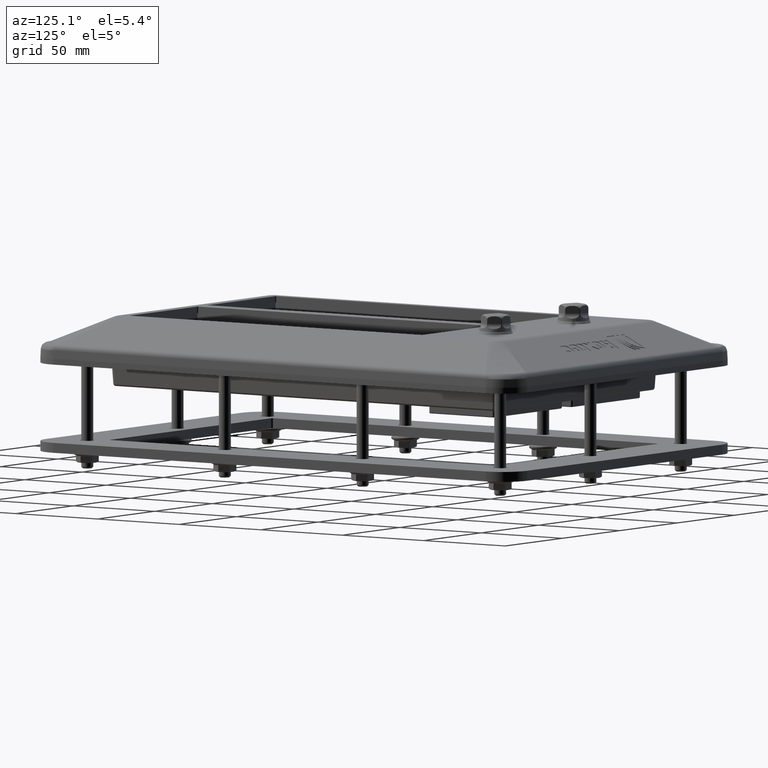
[diagram: clean part render]
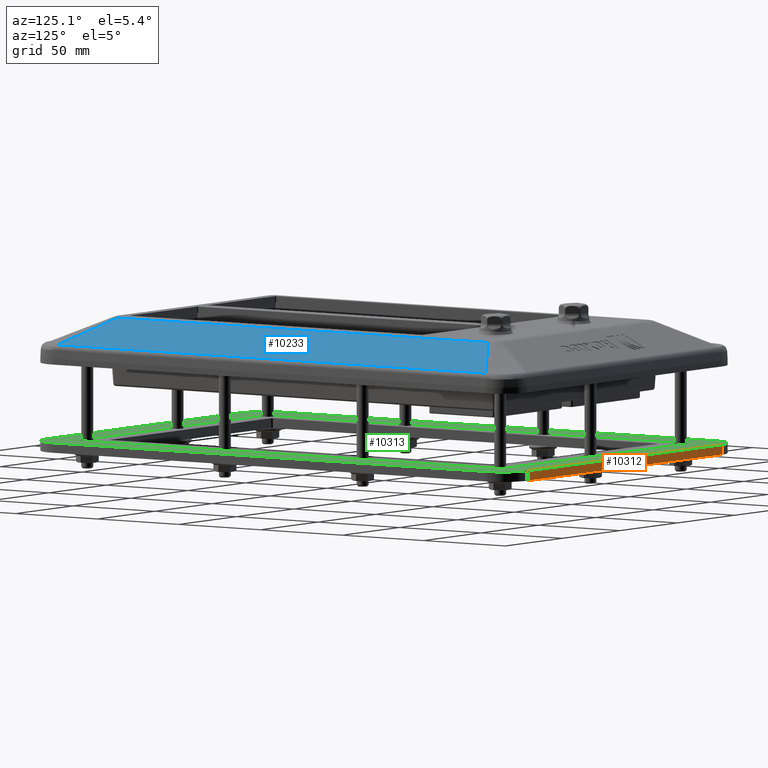
[diagram: same view with three faces highlighted in distinct colors, each labeled with its STEP entity id]
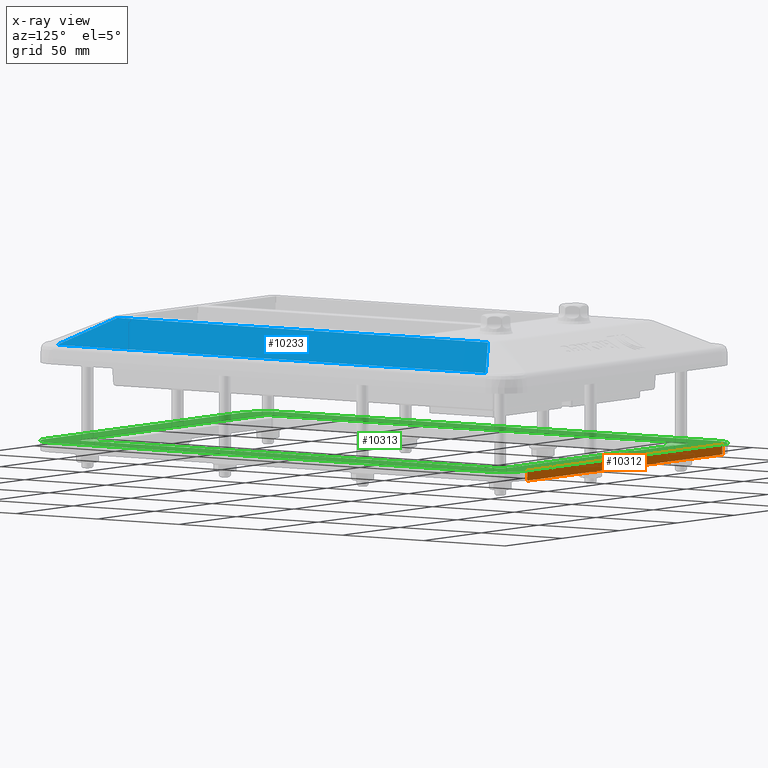
[diagram: x-ray of the same camera — body ghosted, the three highlighted faces saturated]
A machine part, auxiliary view with three faces highlighted in distinct colors.
The next image is the same camera in x-ray (body ghosted, the three faces saturated) — at least one of them is partly hidden behind the body in this view.
Their STEP definitions:

[orange] entity #10312 — the highlighted planar face has unit normal (0, 1, 0).
#930=PLANE('',#11255);
#1493=FACE_OUTER_BOUND('',#2146,.T.);
#2146=EDGE_LOOP('',(#8987,#8988,#8989,#8990));
#2197=LINE('',#14041,#2837);
#2775=LINE('',#19937,#3415);
#2787=LINE('',#19960,#3427);
#2788=LINE('',#19961,#3428);
#2837=VECTOR('',#11459,10.);
#3415=VECTOR('',#13677,10.);
#3427=VECTOR('',#13709,10.);
#3428=VECTOR('',#13710,10.);
#3924=VERTEX_POINT('',#14038);
#3925=VERTEX_POINT('',#14040);
#4762=VERTEX_POINT('',#19935);
#4763=VERTEX_POINT('',#19959);
#4867=EDGE_CURVE('',#3924,#3925,#2197,.T.);
#6169=EDGE_CURVE('',#4762,#3924,#2775,.T.);
#6181=EDGE_CURVE('',#4762,#4763,#2787,.T.);
#6182=EDGE_CURVE('',#3925,#4763,#2788,.T.);
#8987=ORIENTED_EDGE('',*,*,#6181,.T.);
#8988=ORIENTED_EDGE('',*,*,#6182,.F.);
#8989=ORIENTED_EDGE('',*,*,#4867,.F.);
#8990=ORIENTED_EDGE('',*,*,#6169,.F.);
#10312=ADVANCED_FACE('',(#1493),#930,.T.);
#11255=AXIS2_PLACEMENT_3D('',#19958,#13707,#13708);
#11459=DIRECTION('',(1.,0.,0.));
#13677=DIRECTION('',(0.,0.,-1.));
#13707=DIRECTION('center_axis',(0.,1.,2.51920354033766E-139));
#13708=DIRECTION('ref_axis',(1.,0.,0.));
#13709=DIRECTION('',(1.,0.,0.));
#13710=DIRECTION('',(0.,-2.51920354033766E-139,1.));
#14038=CARTESIAN_POINT('',(-85.,147.5,-64.2));
#14040=CARTESIAN_POINT('',(85.,147.5,-64.1999999999999));
#14041=CARTESIAN_POINT('',(0.5,147.5,-64.1999999999999));
#19935=CARTESIAN_POINT('',(-85.,147.5,-59.2));
#19937=CARTESIAN_POINT('',(-85.,147.5,-64.2));
#19958=CARTESIAN_POINT('Origin',(0.5,147.5,-59.1999999999999));
#19959=CARTESIAN_POINT('',(85.,147.5,-59.1999999999999));
#19960=CARTESIAN_POINT('',(0.5,147.5,-59.1999999999999));
#19961=CARTESIAN_POINT('',(85.,147.5,-59.1999999999999));

[blue] entity #10233 — the highlighted planar face has unit normal (-0.4149, -0, -0.9099).
#912=PLANE('',#11153);
#1414=FACE_OUTER_BOUND('',#2062,.T.);
#2062=EDGE_LOOP('',(#8573,#8574,#8575,#8576));
#2731=LINE('',#18060,#3371);
#2733=LINE('',#18068,#3373);
#2734=LINE('',#18070,#3374);
#2735=LINE('',#18071,#3375);
#3371=VECTOR('',#13443,10.);
#3373=VECTOR('',#13451,10.);
#3374=VECTOR('',#13452,10.);
#3375=VECTOR('',#13453,10.);
#4673=VERTEX_POINT('',#18058);
#4674=VERTEX_POINT('',#18059);
#4677=VERTEX_POINT('',#18067);
#4678=VERTEX_POINT('',#18069);
#6014=EDGE_CURVE('',#4673,#4674,#2731,.T.);
#6018=EDGE_CURVE('',#4674,#4677,#2733,.T.);
#6019=EDGE_CURVE('',#4673,#4678,#2734,.T.);
#6020=EDGE_CURVE('',#4677,#4678,#2735,.T.);
#8573=ORIENTED_EDGE('',*,*,#6018,.F.);
#8574=ORIENTED_EDGE('',*,*,#6014,.F.);
#8575=ORIENTED_EDGE('',*,*,#6019,.T.);
#8576=ORIENTED_EDGE('',*,*,#6020,.F.);
#10233=ADVANCED_FACE('',(#1414),#912,.F.);
#11153=AXIS2_PLACEMENT_3D('',#18066,#13449,#13450);
#13443=DIRECTION('',(-7.40086443954065E-17,1.,0.));
#13449=DIRECTION('center_axis',(-0.414919098398359,-3.07076000062268E-17,
-0.909858308630686));
#13450=DIRECTION('ref_axis',(-0.909858308630686,2.77333911991762E-32,0.414919098398359));
#13451=DIRECTION('',(0.782692255466614,0.50989723483167,-0.356928064382169));
#13452=DIRECTION('',(0.782692255466614,-0.50989723483167,-0.356928064382169));
#13453=DIRECTION('',(-7.04856478842382E-17,-1.,6.58931626030953E-17));
#18058=CARTESIAN_POINT('',(70.8813428143074,-113.530190758506,2.47886646904549));
#18059=CARTESIAN_POINT('',(70.8813428143075,113.530190758506,2.4788664690455));
#18060=CARTESIAN_POINT('',(70.8813428143074,-112.5,2.47886646904549));
#18066=CARTESIAN_POINT('Origin',(69.3000000000001,-112.5,3.2));
#18067=CARTESIAN_POINT('',(98.0219710076899,131.211381763967,-9.8979672347771));
#18068=CARTESIAN_POINT('',(69.3,112.5,3.2));
#18069=CARTESIAN_POINT('',(98.0219710076899,-131.211381763967,-9.8979672347771));
#18070=CARTESIAN_POINT('',(69.3000000000001,-112.5,3.2));
#18071=CARTESIAN_POINT('',(98.0219710076899,-122.5,-9.8979672347771));

[green] entity #10313 — the highlighted planar face has unit normal (0, 0, -1).
#679=FACE_BOUND('',#2148,.T.);
#931=PLANE('',#11256);
#1494=FACE_OUTER_BOUND('',#2147,.T.);
#2147=EDGE_LOOP('',(#8991,#8992,#8993,#8994,#8995,#8996,#8997,#8998));
#2148=EDGE_LOOP('',(#8999,#9000,#9001,#9002,#9003,#9004,#9005,#9006));
#2179=LINE('',#13813,#2819);
#2180=LINE('',#13817,#2820);
#2181=LINE('',#13821,#2821);
#2182=LINE('',#13824,#2822);
#2777=LINE('',#19940,#3417);
#2787=LINE('',#19960,#3427);
#2789=LINE('',#19964,#3429);
#2790=LINE('',#19968,#3430);
#2819=VECTOR('',#11327,10.);
#2820=VECTOR('',#11330,10.);
#2821=VECTOR('',#11333,10.);
#2822=VECTOR('',#11336,10.);
#3417=VECTOR('',#13681,10.);
#3427=VECTOR('',#13709,10.);
#3429=VECTOR('',#13713,10.);
#3430=VECTOR('',#13716,10.);
#3451=CIRCLE('',#10368,3.99999999999999);
#3452=CIRCLE('',#10369,3.99999999999999);
#3453=CIRCLE('',#10370,3.99999999999997);
#3454=CIRCLE('',#10371,4.);
#3845=CIRCLE('',#11243,15.);
#3846=CIRCLE('',#11245,15.);
#3847=CIRCLE('',#11257,15.);
#3848=CIRCLE('',#11258,15.);
#3865=VERTEX_POINT('',#13809);
#3866=VERTEX_POINT('',#13810);
#3867=VERTEX_POINT('',#13812);
#3868=VERTEX_POINT('',#13814);
#3869=VERTEX_POINT('',#13816);
#3870=VERTEX_POINT('',#13818);
#3871=VERTEX_POINT('',#13820);
#3872=VERTEX_POINT('',#13822);
#4759=VERTEX_POINT('',#19928);
#4760=VERTEX_POINT('',#19929);
#4761=VERTEX_POINT('',#19934);
#4762=VERTEX_POINT('',#19935);
#4763=VERTEX_POINT('',#19959);
#4764=VERTEX_POINT('',#19963);
#4765=VERTEX_POINT('',#19965);
#4766=VERTEX_POINT('',#19967);
#4791=EDGE_CURVE('',#3865,#3866,#3451,.T.);
#4792=EDGE_CURVE('',#3867,#3865,#2179,.T.);
#4793=EDGE_CURVE('',#3868,#3867,#3452,.T.);
#4794=EDGE_CURVE('',#3869,#3868,#2180,.T.);
#4795=EDGE_CURVE('',#3870,#3869,#3453,.T.);
#4796=EDGE_CURVE('',#3871,#3870,#2181,.T.);
#4797=EDGE_CURVE('',#3872,#3871,#3454,.T.);
#4798=EDGE_CURVE('',#3866,#3872,#2182,.T.);
#6165=EDGE_CURVE('',#4759,#4760,#3845,.T.);
#6168=EDGE_CURVE('',#4761,#4762,#3846,.T.);
#6171=EDGE_CURVE('',#4761,#4760,#2777,.T.);
#6181=EDGE_CURVE('',#4762,#4763,#2787,.T.);
#6183=EDGE_CURVE('',#4764,#4759,#2789,.T.);
#6184=EDGE_CURVE('',#4765,#4764,#3847,.T.);
#6185=EDGE_CURVE('',#4766,#4765,#2790,.T.);
#6186=EDGE_CURVE('',#4763,#4766,#3848,.T.);
#8991=ORIENTED_EDGE('',*,*,#6183,.F.);
#8992=ORIENTED_EDGE('',*,*,#6184,.F.);
#8993=ORIENTED_EDGE('',*,*,#6185,.F.);
#8994=ORIENTED_EDGE('',*,*,#6186,.F.);
#8995=ORIENTED_EDGE('',*,*,#6181,.F.);
#8996=ORIENTED_EDGE('',*,*,#6168,.F.);
#8997=ORIENTED_EDGE('',*,*,#6171,.T.);
#8998=ORIENTED_EDGE('',*,*,#6165,.F.);
#8999=ORIENTED_EDGE('',*,*,#4791,.T.);
#9000=ORIENTED_EDGE('',*,*,#4798,.T.);
#9001=ORIENTED_EDGE('',*,*,#4797,.T.);
#9002=ORIENTED_EDGE('',*,*,#4796,.T.);
#9003=ORIENTED_EDGE('',*,*,#4795,.T.);
#9004=ORIENTED_EDGE('',*,*,#4794,.T.);
#9005=ORIENTED_EDGE('',*,*,#4793,.T.);
#9006=ORIENTED_EDGE('',*,*,#4792,.T.);
#10313=ADVANCED_FACE('',(#1494,#679),#931,.F.);
#10368=AXIS2_PLACEMENT_3D('',#13811,#11325,#11326);
#10369=AXIS2_PLACEMENT_3D('',#13815,#11328,#11329);
#10370=AXIS2_PLACEMENT_3D('',#13819,#11331,#11332);
#10371=AXIS2_PLACEMENT_3D('',#13823,#11334,#11335);
#11243=AXIS2_PLACEMENT_3D('',#19930,#13669,#13670);
#11245=AXIS2_PLACEMENT_3D('',#19936,#13675,#13676);
#11256=AXIS2_PLACEMENT_3D('',#19962,#13711,#13712);
#11257=AXIS2_PLACEMENT_3D('',#19966,#13714,#13715);
#11258=AXIS2_PLACEMENT_3D('',#19969,#13717,#13718);
#11325=DIRECTION('center_axis',(0.,2.51920354033766E-139,-1.));
#11326=DIRECTION('ref_axis',(-1.57941333131299E-154,1.,0.));
#11327=DIRECTION('',(-1.57941333131299E-154,1.,2.51920354033766E-139));
#11328=DIRECTION('center_axis',(0.,2.51920354033766E-139,-1.));
#11329=DIRECTION('ref_axis',(-1.,-1.57941333131299E-154,0.));
#11330=DIRECTION('',(-1.,2.25712431944123E-16,5.68615557651859E-155));
#11331=DIRECTION('center_axis',(0.,2.51920354033766E-139,-1.));
#11332=DIRECTION('ref_axis',(-8.88178419700128E-15,-1.,0.));
#11333=DIRECTION('',(1.57941333131299E-154,-1.,-2.51920354033766E-139));
#11334=DIRECTION('center_axis',(0.,2.51920354033766E-139,-1.));
#11335=DIRECTION('ref_axis',(1.,1.57941333131299E-154,0.));
#11336=DIRECTION('',(1.,1.57941333131299E-154,3.97886365590017E-293));
#13669=DIRECTION('center_axis',(0.,0.,-1.));
#13670=DIRECTION('ref_axis',(-0.707106781186547,-0.707106781186547,0.));
#13675=DIRECTION('center_axis',(0.,0.,-1.));
#13676=DIRECTION('ref_axis',(-0.707106781186547,0.707106781186547,0.));
#13681=DIRECTION('',(0.,-1.,0.));
#13709=DIRECTION('',(1.,0.,0.));
#13711=DIRECTION('center_axis',(0.,2.51920354033766E-139,-1.));
#13712=DIRECTION('ref_axis',(1.,0.,0.));
#13713=DIRECTION('',(-1.,1.79793202368446E-16,4.52935671935235E-155));
#13714=DIRECTION('center_axis',(0.,2.51920354033766E-139,-1.));
#13715=DIRECTION('ref_axis',(0.707106781186547,-0.707106781186547,-1.78134590656192E-139));
#13716=DIRECTION('',(0.,-1.,-2.51920354033766E-139));
#13717=DIRECTION('center_axis',(0.,2.51920354033766E-139,-1.));
#13718=DIRECTION('ref_axis',(0.707106781186547,0.707106781186547,1.78134590656192E-139));
#13809=CARTESIAN_POINT('',(-82.7,126.512356905968,-59.1999999999999));
#13810=CARTESIAN_POINT('',(-78.7,130.512356905968,-59.1999999999999));
#13811=CARTESIAN_POINT('Origin',(-78.7,126.512356905968,-59.1999999999999));
#13812=CARTESIAN_POINT('',(-82.7,-126.512356905968,-59.1999999999999));
#13813=CARTESIAN_POINT('',(-82.7,63.256178452984,-59.1999999999999));
#13814=CARTESIAN_POINT('',(-78.7,-130.512356905968,-59.1999999999999));
#13815=CARTESIAN_POINT('Origin',(-78.7,-126.512356905968,-59.1999999999999));
#13816=CARTESIAN_POINT('',(78.7,-130.512356905968,-59.1999999999999));
#13817=CARTESIAN_POINT('',(-14.4,-130.512356905968,-59.1999999999999));
#13818=CARTESIAN_POINT('',(82.7,-126.512356905968,-59.1999999999999));
#13819=CARTESIAN_POINT('Origin',(78.7,-126.512356905968,-59.1999999999999));
#13820=CARTESIAN_POINT('',(82.7,126.512356905968,-59.1999999999999));
#13821=CARTESIAN_POINT('',(82.7,-63.2561784529841,-59.1999999999999));
#13822=CARTESIAN_POINT('',(78.7,130.512356905968,-59.1999999999999));
#13823=CARTESIAN_POINT('Origin',(78.7,126.512356905968,-59.1999999999999));
#13824=CARTESIAN_POINT('',(64.3,130.512356905968,-59.1999999999999));
#19928=CARTESIAN_POINT('',(-85.,-147.5,-59.2));
#19929=CARTESIAN_POINT('',(-100.,-132.5,-59.2));
#19930=CARTESIAN_POINT('Origin',(-85.,-132.5,-59.2));
#19934=CARTESIAN_POINT('',(-100.,132.5,-59.2));
#19935=CARTESIAN_POINT('',(-85.,147.5,-59.2));
#19936=CARTESIAN_POINT('Origin',(-85.,132.5,-59.2));
#19940=CARTESIAN_POINT('',(-100.,147.5,-59.2));
#19959=CARTESIAN_POINT('',(85.,147.5,-59.1999999999999));
#19960=CARTESIAN_POINT('',(0.5,147.5,-59.1999999999999));
#19962=CARTESIAN_POINT('Origin',(49.9,1.67946902689177E-137,-59.1999999999999));
#19963=CARTESIAN_POINT('',(85.,-147.5,-59.1999999999999));
#19964=CARTESIAN_POINT('',(99.3,-147.5,-59.1999999999999));
#19965=CARTESIAN_POINT('',(100.,-132.5,-59.1999999999999));
#19966=CARTESIAN_POINT('Origin',(85.,-132.5,-59.1999999999999));
#19967=CARTESIAN_POINT('',(100.,132.5,-59.1999999999999));
#19968=CARTESIAN_POINT('',(100.,147.5,-59.1999999999999));
#19969=CARTESIAN_POINT('Origin',(85.,132.5,-59.1999999999999));